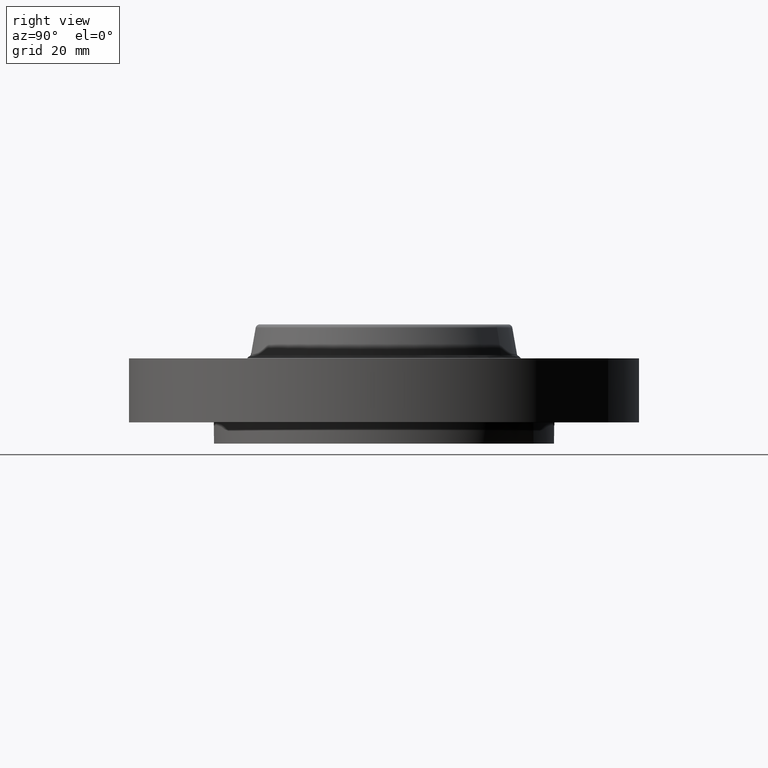
[diagram: clean part render]
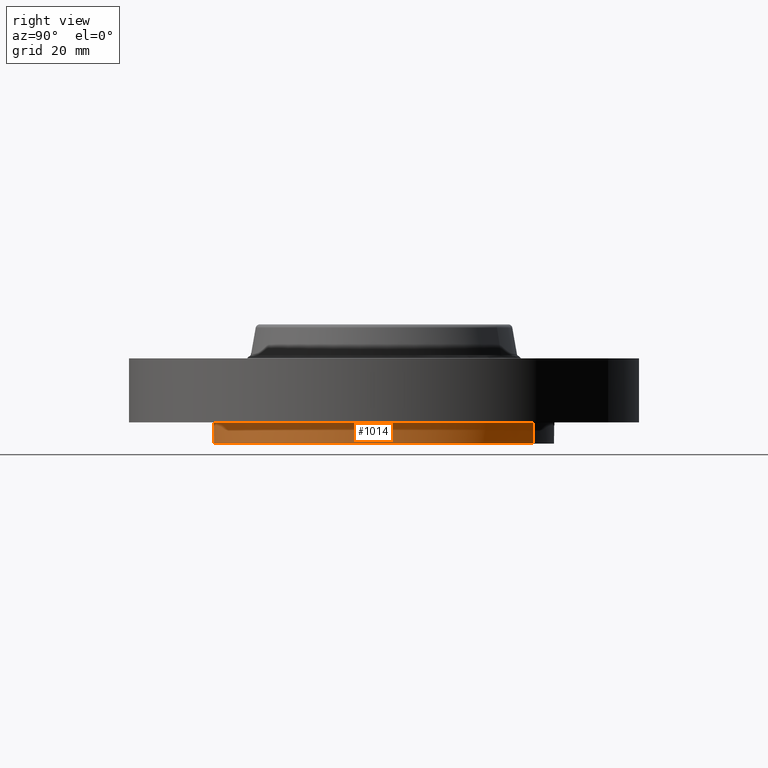
[diagram: same view with one face highlighted and labeled with its STEP entity id]
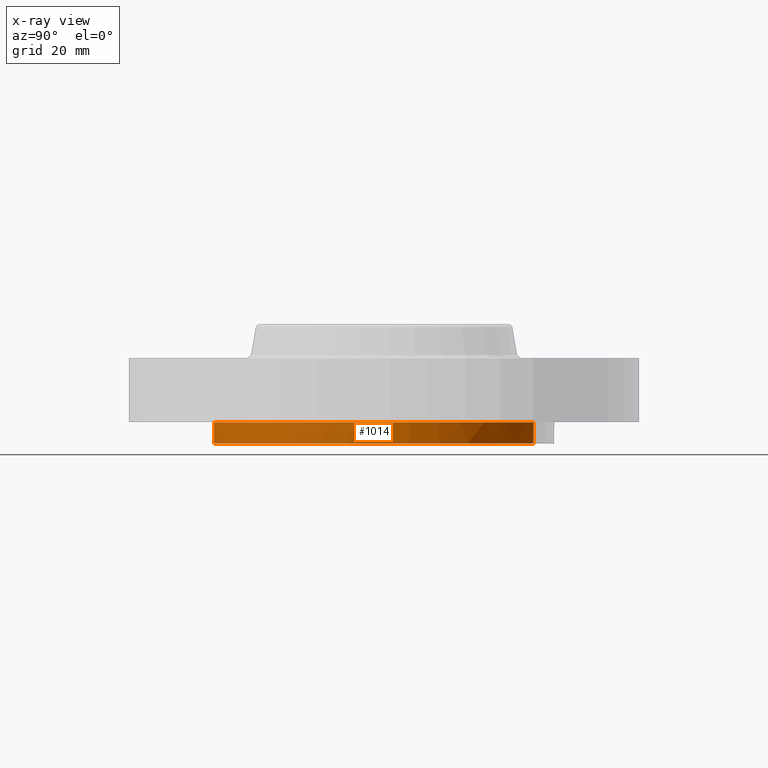
[diagram: x-ray of the same camera — body ghosted, the highlighted face saturated]
A machine part, right view. The second image highlights one B-rep face of the part: STEP entity #1014.
The next image is the same camera in x-ray: the body ghosted, the highlighted face saturated — about 0% of this face is hidden behind the body in this view.
In plain terms, the highlighted cylindrical surface (partial cylindrical patch) has radius 63.5 mm, axis along (0, 0, -1).
Its self-contained STEP definition (entity closure, byte-faithful):
#364=AXIS2_PLACEMENT_3D('Circle Axis2P3D',#362,#363,$) ;
#879=AXIS2_PLACEMENT_3D('Circle Axis2P3D',#877,#878,$) ;
#884=AXIS2_PLACEMENT_3D('Circle Axis2P3D',#882,#883,$) ;
#939=AXIS2_PLACEMENT_3D('Circle Axis2P3D',#937,#938,$) ;
#944=AXIS2_PLACEMENT_3D('Circle Axis2P3D',#942,#943,$) ;
#949=AXIS2_PLACEMENT_3D('Circle Axis2P3D',#947,#948,$) ;
#992=AXIS2_PLACEMENT_3D('Cylinder Axis2P3D',#989,#990,#991) ;
#362=CARTESIAN_POINT('Axis2P3D Location',(0.,0.,-0.312500000001)) ;
#366=CARTESIAN_POINT('Vertex',(1.19856384652,2.19395640473,-0.312500000001)) ;
#368=CARTESIAN_POINT('Vertex',(-1.19856384652,-2.19395640473,-0.312500000001)) ;
#417=CARTESIAN_POINT('Vertex',(2.50000000001,2.79741234551E-016,0.)) ;
#612=CARTESIAN_POINT('Vertex',(1.76776695297,1.76776695297,0.)) ;
#677=CARTESIAN_POINT('Vertex',(1.76776695297,-1.76776695297,0.)) ;
#807=CARTESIAN_POINT('Vertex',(3.09971815926E-016,-2.50000000001,0.)) ;
#877=CARTESIAN_POINT('Axis2P3D Location',(0.,0.,0.)) ;
#882=CARTESIAN_POINT('Axis2P3D Location',(0.,0.,0.)) ;
#886=CARTESIAN_POINT('Vertex',(1.19856384652,2.19395640473,1.39870617276E-016)) ;
#934=CARTESIAN_POINT('Vertex',(-1.19856384652,-2.19395640473,1.39870617276E-016)) ;
#937=CARTESIAN_POINT('Axis2P3D Location',(0.,0.,0.)) ;
#942=CARTESIAN_POINT('Axis2P3D Location',(0.,0.,0.)) ;
#947=CARTESIAN_POINT('Axis2P3D Location',(0.,0.,0.)) ;
#989=CARTESIAN_POINT('Axis2P3D Location',(0.,0.,0.563750000002)) ;
#994=CARTESIAN_POINT('Line Origine',(1.19856384652,2.19395640473,-0.156250000001)) ;
#999=CARTESIAN_POINT('Line Origine',(-1.19856384652,-2.19395640473,-0.156250000001)) ;
#363=DIRECTION('Axis2P3D Direction',(0.,0.,-0.0393700787402)) ;
#878=DIRECTION('Axis2P3D Direction',(0.,0.,-0.0393700787402)) ;
#883=DIRECTION('Axis2P3D Direction',(0.,0.,-0.0393700787402)) ;
#938=DIRECTION('Axis2P3D Direction',(0.,0.,-0.0393700787402)) ;
#943=DIRECTION('Axis2P3D Direction',(0.,0.,-0.0393700787402)) ;
#948=DIRECTION('Axis2P3D Direction',(0.,0.,-0.0393700787402)) ;
#990=DIRECTION('Axis2P3D Direction',(0.,0.,-0.0393700787402)) ;
#991=DIRECTION('Axis2P3D XDirection',(-0.0188750212049,-0.0345504945626,0.)) ;
#995=DIRECTION('Vector Direction',(0.,0.,-0.0393700787402)) ;
#1000=DIRECTION('Vector Direction',(0.,0.,-0.0393700787402)) ;
#996=VECTOR('Line Direction',#995,0.0393700787402) ;
#1001=VECTOR('Line Direction',#1000,0.0393700787402) ;
#1005=ORIENTED_EDGE('',*,*,#370,.F.) ;
#1006=ORIENTED_EDGE('',*,*,#998,.T.) ;
#1007=ORIENTED_EDGE('',*,*,#888,.T.) ;
#1008=ORIENTED_EDGE('',*,*,#881,.T.) ;
#1009=ORIENTED_EDGE('',*,*,#951,.T.) ;
#1010=ORIENTED_EDGE('',*,*,#946,.T.) ;
#1011=ORIENTED_EDGE('',*,*,#941,.T.) ;
#1012=ORIENTED_EDGE('',*,*,#1003,.F.) ;
#1014=ADVANCED_FACE('PartBody',(#1013),#993,.T.) ;
#365=CIRCLE('generated circle',#364,2.50000000001) ;
#880=CIRCLE('generated circle',#879,2.50000000001) ;
#885=CIRCLE('generated circle',#884,2.50000000001) ;
#940=CIRCLE('generated circle',#939,2.50000000001) ;
#945=CIRCLE('generated circle',#944,2.50000000001) ;
#950=CIRCLE('generated circle',#949,2.50000000001) ;
#993=CYLINDRICAL_SURFACE('generated cylinder',#992,2.50000000001) ;
#370=EDGE_CURVE('',#367,#369,#365,.T.) ;
#881=EDGE_CURVE('',#613,#418,#880,.T.) ;
#888=EDGE_CURVE('',#887,#613,#885,.T.) ;
#941=EDGE_CURVE('',#808,#935,#940,.T.) ;
#946=EDGE_CURVE('',#678,#808,#945,.T.) ;
#951=EDGE_CURVE('',#418,#678,#950,.T.) ;
#998=EDGE_CURVE('',#367,#887,#997,.F.) ;
#1003=EDGE_CURVE('',#369,#935,#1002,.F.) ;
#1004=EDGE_LOOP('',(#1005,#1006,#1007,#1008,#1009,#1010,#1011,#1012)) ;
#1013=FACE_OUTER_BOUND('',#1004,.T.) ;
#997=LINE('Line',#994,#996) ;
#1002=LINE('Line',#999,#1001) ;
#367=VERTEX_POINT('',#366) ;
#369=VERTEX_POINT('',#368) ;
#418=VERTEX_POINT('',#417) ;
#613=VERTEX_POINT('',#612) ;
#678=VERTEX_POINT('',#677) ;
#808=VERTEX_POINT('',#807) ;
#887=VERTEX_POINT('',#886) ;
#935=VERTEX_POINT('',#934) ;